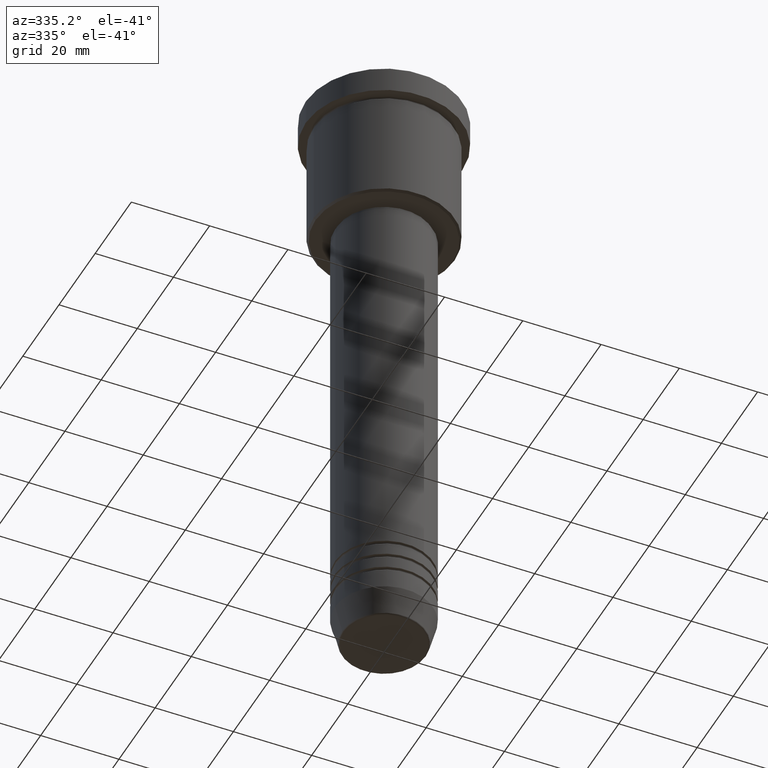
[diagram: clean part render]
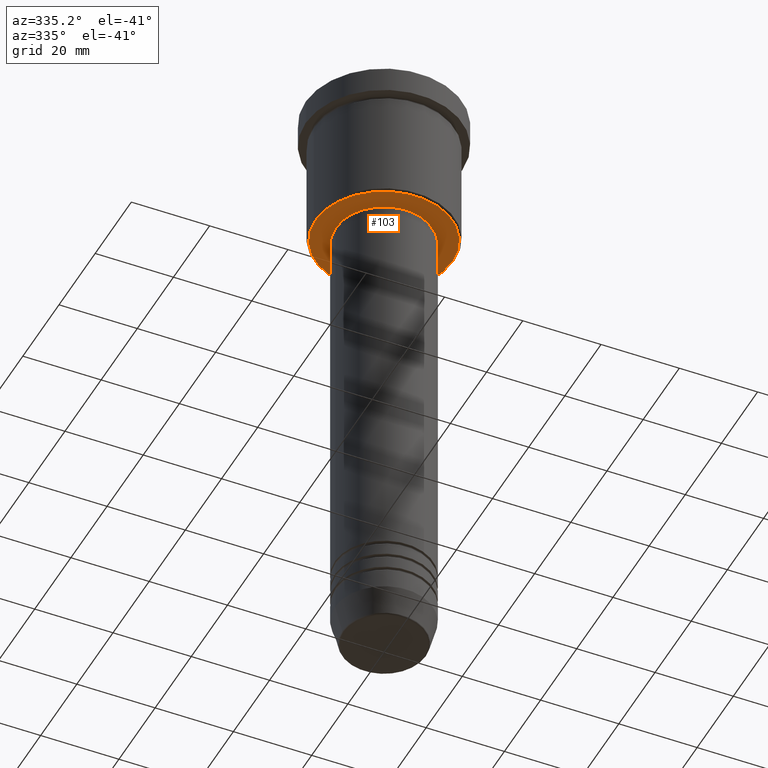
[diagram: same view with one face highlighted and labeled with its STEP entity id]
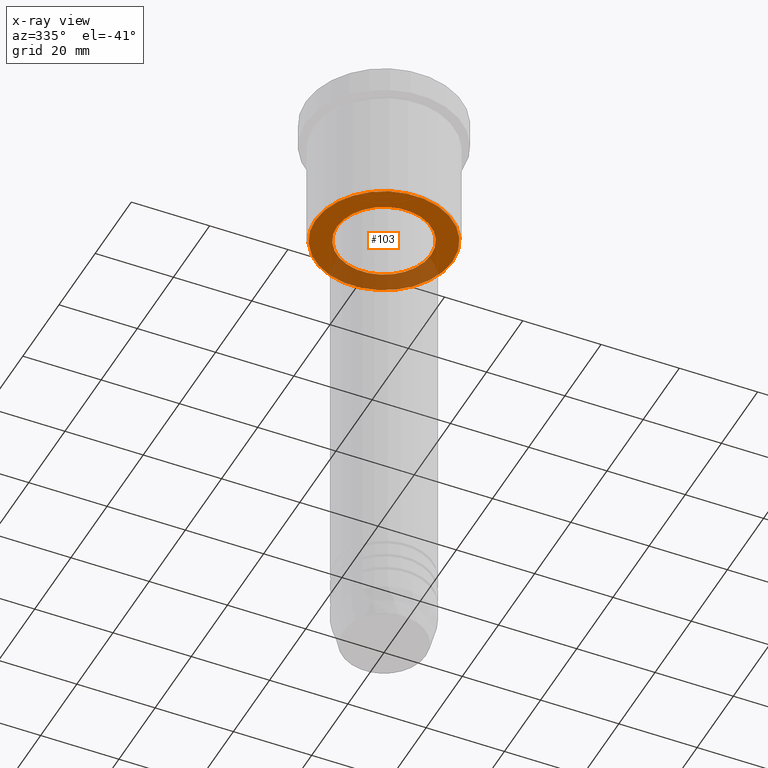
[diagram: x-ray of the same camera — body ghosted, the highlighted face saturated]
A machine part, auxiliary view. The second image highlights one B-rep face of the part: STEP entity #103.
The next image is the same camera in x-ray: the body ghosted, the highlighted face saturated — about 29% of this face is hidden behind the body in this view.
In plain terms, the highlighted planar face has unit normal (0, 0, -1).
Its self-contained STEP definition (entity closure, byte-faithful):
#14 = ORIENTED_EDGE ( 'NONE', *, *, #271, .T. ) ;
#78 = VERTEX_POINT ( 'NONE', #848 ) ;
#97 = CARTESIAN_POINT ( 'NONE',  ( 17.49999999999998934, 0.000000000000000000, -36.00000000000000711 ) ) ;
#98 = VERTEX_POINT ( 'NONE', #668 ) ;
#103 = ADVANCED_FACE ( 'NONE', ( #492, #1144 ), #1129, .T. ) ;
#135 = EDGE_LOOP ( 'NONE', ( #14, #532 ) ) ;
#192 = CARTESIAN_POINT ( 'NONE',  ( 0.000000000000000000, 0.000000000000000000, -36.00000000000001421 ) ) ;
#211 = CIRCLE ( 'NONE', #631, 17.49999999999998934 ) ;
#271 = EDGE_CURVE ( 'NONE', #98, #546, #968, .T. ) ;
#336 = ORIENTED_EDGE ( 'NONE', *, *, #999, .T. ) ;
#340 = CIRCLE ( 'NONE', #951, 12.00000000000000000 ) ;
#358 = VERTEX_POINT ( 'NONE', #97 ) ;
#404 = DIRECTION ( 'NONE',  ( 0.000000000000000000, 0.000000000000000000, -1.000000000000000000 ) ) ;
#469 = DIRECTION ( 'NONE',  ( -0.000000000000000000, -0.000000000000000000, 1.000000000000000000 ) ) ;
#483 = ORIENTED_EDGE ( 'NONE', *, *, #787, .T. ) ;
#492 = FACE_OUTER_BOUND ( 'NONE', #809, .T. ) ;
#522 = AXIS2_PLACEMENT_3D ( 'NONE', #805, #1076, #548 ) ;
#532 = ORIENTED_EDGE ( 'NONE', *, *, #685, .T. ) ;
#546 = VERTEX_POINT ( 'NONE', #1060 ) ;
#548 = DIRECTION ( 'NONE',  ( -1.000000000000000000, 0.000000000000000000, 0.000000000000000000 ) ) ;
#549 = DIRECTION ( 'NONE',  ( 1.000000000000000000, 0.000000000000000000, 0.000000000000000000 ) ) ;
#631 = AXIS2_PLACEMENT_3D ( 'NONE', #839, #846, #924 ) ;
#668 = CARTESIAN_POINT ( 'NONE',  ( 12.00000000000000000, 0.000000000000000000, -36.00000000000001421 ) ) ;
#685 = EDGE_CURVE ( 'NONE', #546, #98, #340, .T. ) ;
#710 = AXIS2_PLACEMENT_3D ( 'NONE', #933, #911, #992 ) ;
#753 = DIRECTION ( 'NONE',  ( -1.000000000000000000, 0.000000000000000000, -0.000000000000000000 ) ) ;
#782 = AXIS2_PLACEMENT_3D ( 'NONE', #1032, #404, #753 ) ;
#787 = EDGE_CURVE ( 'NONE', #358, #78, #211, .T. ) ;
#805 = CARTESIAN_POINT ( 'NONE',  ( 0.000000000000000000, 0.000000000000000000, -36.00000000000000711 ) ) ;
#809 = EDGE_LOOP ( 'NONE', ( #483, #336 ) ) ;
#839 = CARTESIAN_POINT ( 'NONE',  ( 0.000000000000000000, 0.000000000000000000, -36.00000000000000711 ) ) ;
#846 = DIRECTION ( 'NONE',  ( 0.000000000000000000, 0.000000000000000000, -1.000000000000000000 ) ) ;
#848 = CARTESIAN_POINT ( 'NONE',  ( -17.49999999999998934, 2.173748068486550852E-15, -36.00000000000000711 ) ) ;
#875 = CIRCLE ( 'NONE', #522, 17.49999999999998934 ) ;
#911 = DIRECTION ( 'NONE',  ( -0.000000000000000000, -0.000000000000000000, 1.000000000000000000 ) ) ;
#924 = DIRECTION ( 'NONE',  ( -1.000000000000000000, 0.000000000000000000, 0.000000000000000000 ) ) ;
#933 = CARTESIAN_POINT ( 'NONE',  ( 0.000000000000000000, 0.000000000000000000, -36.00000000000001421 ) ) ;
#951 = AXIS2_PLACEMENT_3D ( 'NONE', #192, #469, #549 ) ;
#968 = CIRCLE ( 'NONE', #710, 12.00000000000000000 ) ;
#992 = DIRECTION ( 'NONE',  ( 1.000000000000000000, 0.000000000000000000, 0.000000000000000000 ) ) ;
#999 = EDGE_CURVE ( 'NONE', #78, #358, #875, .T. ) ;
#1032 = CARTESIAN_POINT ( 'NONE',  ( 0.000000000000000000, 18.00000000000000000, -36.00000000000000711 ) ) ;
#1060 = CARTESIAN_POINT ( 'NONE',  ( -12.00000000000000000, 1.469576158976823947E-15, -36.00000000000001421 ) ) ;
#1076 = DIRECTION ( 'NONE',  ( 0.000000000000000000, 0.000000000000000000, -1.000000000000000000 ) ) ;
#1129 = PLANE ( 'NONE',  #782 ) ;
#1144 = FACE_BOUND ( 'NONE', #135, .T. ) ;